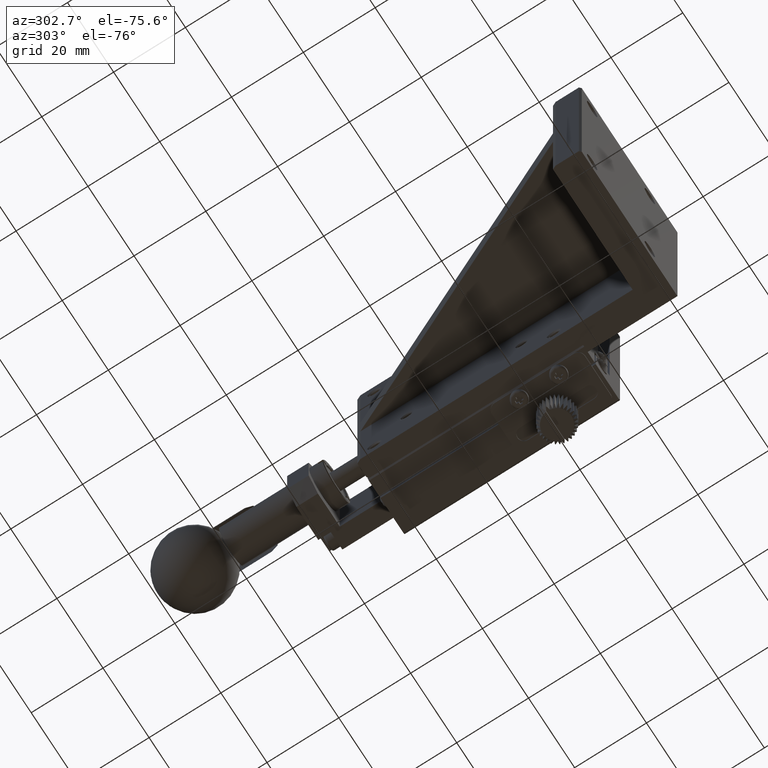
[diagram: clean part render]
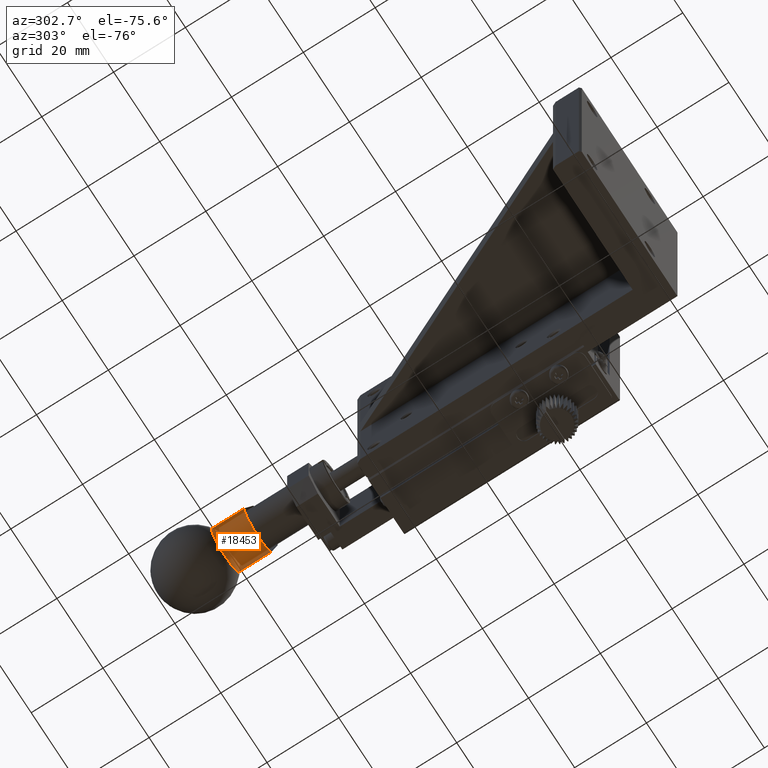
[diagram: same view with one face highlighted and labeled with its STEP entity id]
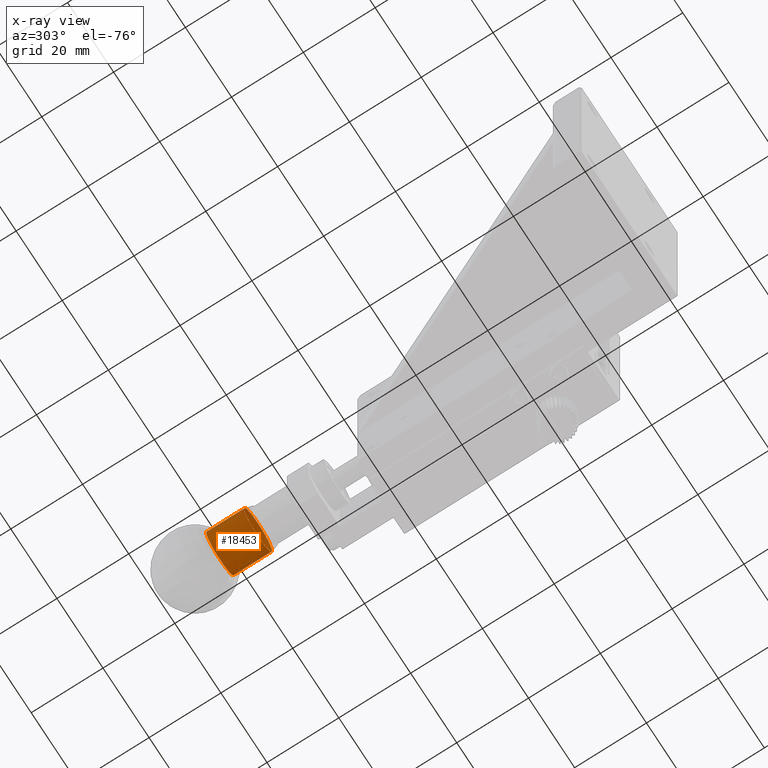
[diagram: x-ray of the same camera — body ghosted, the highlighted face saturated]
A machine part, auxiliary view. The second image highlights one B-rep face of the part: STEP entity #18453.
The next image is the same camera in x-ray: the body ghosted, the highlighted face saturated — about 0% of this face is hidden behind the body in this view.
In plain terms, the highlighted cylindrical surface (bore or boss wall) has radius 6.017 mm, axis along (-0, -1, 0).
Its self-contained STEP definition (entity closure, byte-faithful):
#13 = CARTESIAN_POINT ( 'NONE',  ( 6.055276924156265395, 128.0019999999913409, -33.26319846468483377 ) ) ;
#16 = CARTESIAN_POINT ( 'NONE',  ( -5.007864875759115542, 128.0019999999913409, -30.33143420832531945 ) ) ;
#124 = DIRECTION ( 'NONE',  ( 3.321202459121410343E-17, 1.000000000000000000, -1.733000009605370070E-16 ) ) ;
#262 = EDGE_CURVE ( 'NONE', #64967, #62442, #79744, .T. ) ;
#1105 = CARTESIAN_POINT ( 'NONE',  ( 6.807669567108926678, 128.0019999999913409, -28.42670307980187872 ) ) ;
#1208 = DIRECTION ( 'NONE',  ( -0.5469441386039888275, 0.000000000000000000, 0.8371691043312222691 ) ) ;
#1653 = DIRECTION ( 'NONE',  ( -0.5469441386039888275, 0.000000000000000000, 0.8371691043312222691 ) ) ;
#2397 = ORIENTED_EDGE ( 'NONE', *, *, #9263, .F. ) ;
#2838 = CARTESIAN_POINT ( 'NONE',  ( 2.541319682967011495, 128.0019999999913409, -24.18376215799879603 ) ) ;
#3208 = DIRECTION ( 'NONE',  ( -0.5469441386039888275, 0.000000000000000000, 0.8371691043312222691 ) ) ;
#3864 = CARTESIAN_POINT ( 'NONE',  ( 1.000000000000002665, 128.0019999999836102, -30.00000000000001066 ) ) ;
#3973 = AXIS2_PLACEMENT_3D ( 'NONE', #36223, #87487, #66425 ) ;
#4450 = CARTESIAN_POINT ( 'NONE',  ( -2.290962881972379517, 128.0019999999913409, -24.96275349925101494 ) ) ;
#4844 = DIRECTION ( 'NONE',  ( 3.321202459121410343E-17, 1.000000000000000000, -1.733000009605370070E-16 ) ) ;
#4987 = CARTESIAN_POINT ( 'NONE',  ( 1.000000000000002665, 128.0019999999836102, -30.00000000000001066 ) ) ;
#5153 = VERTEX_POINT ( 'NONE', #79198 ) ;
#5504 = EDGE_CURVE ( 'NONE', #24871, #86286, #42918, .T. ) ;
#5575 = CARTESIAN_POINT ( 'NONE',  ( 3.171745010068736104, 128.0019999999913409, -35.61140023622179740 ) ) ;
#5586 = CARTESIAN_POINT ( 'NONE',  ( 7.007864875759084455, 128.0019999999913409, -29.66856579167474450 ) ) ;
#5743 = DIRECTION ( 'NONE',  ( 3.321202459121410343E-17, 1.000000000000000000, -1.733000009605370070E-16 ) ) ;
#6131 = ORIENTED_EDGE ( 'NONE', *, *, #85118, .F. ) ;
#6329 = AXIS2_PLACEMENT_3D ( 'NONE', #24505, #37921, #17801 ) ;
#6343 = EDGE_CURVE ( 'NONE', #21019, #33969, #33764, .T. ) ;
#6754 = ORIENTED_EDGE ( 'NONE', *, *, #50239, .F. ) ;
#7315 = CIRCLE ( 'NONE', #13387, 6.016999999985729097 ) ;
#7372 = ORIENTED_EDGE ( 'NONE', *, *, #29072, .F. ) ;
#7956 = CARTESIAN_POINT ( 'NONE',  ( -4.945487660404463526, 128.0019999999913409, -29.07508623115082003 ) ) ;
#8030 = DIRECTION ( 'NONE',  ( 3.321202459121410343E-17, 1.000000000000000000, -1.733000009605370070E-16 ) ) ;
#8354 = CARTESIAN_POINT ( 'NONE',  ( 1.000000000000002665, 128.0019999999836102, -30.00000000000001066 ) ) ;
#8620 = DIRECTION ( 'NONE',  ( 0.5469441386039888275, 0.000000000000000000, -0.8371691043312221581 ) ) ;
#8915 = CARTESIAN_POINT ( 'NONE',  ( 1.298374305929240080, 128.0019999999913409, -23.99040252817301777 ) ) ;
#8961 = CIRCLE ( 'NONE', #53294, 6.016999999985729097 ) ;
#9186 = ORIENTED_EDGE ( 'NONE', *, *, #17789, .F. ) ;
#9263 = EDGE_CURVE ( 'NONE', #5153, #30084, #64565, .T. ) ;
#9300 = DIRECTION ( 'NONE',  ( 3.321202459121410343E-17, 1.000000000000000000, -1.733000009605370070E-16 ) ) ;
#9463 = ORIENTED_EDGE ( 'NONE', *, *, #28897, .F. ) ;
#9602 = ORIENTED_EDGE ( 'NONE', *, *, #5504, .F. ) ;
#9634 = EDGE_CURVE ( 'NONE', #31851, #68710, #84420, .T. ) ;
#10141 = ORIENTED_EDGE ( 'NONE', *, *, #54216, .F. ) ;
#10338 = CIRCLE ( 'NONE', #63902, 6.016999999985729097 ) ;
#11207 = DIRECTION ( 'NONE',  ( 3.321202459121410343E-17, 1.000000000000000000, -1.733000009605370070E-16 ) ) ;
#11211 = ORIENTED_EDGE ( 'NONE', *, *, #84259, .F. ) ;
#11230 = VERTEX_POINT ( 'NONE', #7956 ) ;
#11854 = EDGE_CURVE ( 'NONE', #33969, #57438, #46238, .T. ) ;
#11887 = CARTESIAN_POINT ( 'NONE',  ( 1.000000000000002665, 128.0019999999836102, -30.00000000000001066 ) ) ;
#12421 = DIRECTION ( 'NONE',  ( 3.321202459121410343E-17, 1.000000000000000000, -1.733000009605370070E-16 ) ) ;
#12752 = EDGE_CURVE ( 'NONE', #14155, #5153, #76888, .T. ) ;
#13319 = ORIENTED_EDGE ( 'NONE', *, *, #6343, .F. ) ;
#13387 = AXIS2_PLACEMENT_3D ( 'NONE', #11887, #40117, #63610 ) ;
#13409 = CARTESIAN_POINT ( 'NONE',  ( 0.7016256940707062961, 128.0019999999913409, -36.00959747182700710 ) ) ;
#13516 = DIRECTION ( 'NONE',  ( -0.5469441386039888275, 0.000000000000000000, 0.8371691043312222691 ) ) ;
#13848 = CARTESIAN_POINT ( 'NONE',  ( 5.665652644638611513, 128.0019999999913409, -26.20052972121047219 ) ) ;
#13915 = CIRCLE ( 'NONE', #16968, 6.016999999985729097 ) ;
#14155 = VERTEX_POINT ( 'NONE', #45182 ) ;
#14194 = CIRCLE ( 'NONE', #55461, 6.016999999985729097 ) ;
#14388 = DIRECTION ( 'NONE',  ( -0.5469441386039888275, 0.000000000000000000, 0.8371691043312222691 ) ) ;
#14586 = CARTESIAN_POINT ( 'NONE',  ( 1.000000000000002665, 128.0019999999836102, -30.00000000000001066 ) ) ;
#15901 = CIRCLE ( 'NONE', #48034, 6.016999999985729097 ) ;
#15954 = CIRCLE ( 'NONE', #41950, 6.016999999985729097 ) ;
#16109 = EDGE_CURVE ( 'NONE', #40426, #20733, #35730, .T. ) ;
#16494 = VERTEX_POINT ( 'NONE', #71904 ) ;
#16968 = AXIS2_PLACEMENT_3D ( 'NONE', #8354, #74402, #1653 ) ;
#17789 = EDGE_CURVE ( 'NONE', #30084, #83485, #15901, .T. ) ;
#17801 = DIRECTION ( 'NONE',  ( -0.5469441386039888275, 0.000000000000000000, 0.8371691043312222691 ) ) ;
#18310 = DIRECTION ( 'NONE',  ( 3.321202459121410343E-17, 1.000000000000000000, -1.733000009605370070E-16 ) ) ;
#18453 = ADVANCED_FACE ( 'NONE', ( #31577, #23446 ), #52637, .T. ) ;
#18509 = DIRECTION ( 'NONE',  ( 3.321202459121410343E-17, 1.000000000000000000, -1.733000009605370070E-16 ) ) ;
#18528 = ORIENTED_EDGE ( 'NONE', *, *, #11854, .F. ) ;
#18955 = DIRECTION ( 'NONE',  ( -0.5469441386039888275, 0.000000000000000000, 0.8371691043312222691 ) ) ;
#19008 = ORIENTED_EDGE ( 'NONE', *, *, #19306, .F. ) ;
#19306 = EDGE_CURVE ( 'NONE', #19569, #34873, #15954, .T. ) ;
#19569 = VERTEX_POINT ( 'NONE', #69250 ) ;
#19613 = DIRECTION ( 'NONE',  ( 3.321202459121410343E-17, 1.000000000000000000, -1.733000009605370070E-16 ) ) ;
#19748 = CIRCLE ( 'NONE', #88601, 6.016999999985729097 ) ;
#20046 = CARTESIAN_POINT ( 'NONE',  ( 3.716901993786695169, 128.0019999999913409, -24.63131929092573102 ) ) ;
#20322 = EDGE_CURVE ( 'NONE', #88403, #19569, #20638, .T. ) ;
#20638 = CIRCLE ( 'NONE', #43582, 6.016999999985729097 ) ;
#20733 = VERTEX_POINT ( 'NONE', #71380 ) ;
#21019 = VERTEX_POINT ( 'NONE', #2838 ) ;
#21070 = DIRECTION ( 'NONE',  ( 3.321202459121410343E-17, 1.000000000000000000, -1.733000009605370070E-16 ) ) ;
#21162 = CARTESIAN_POINT ( 'NONE',  ( -1.716901993786708935, 128.0019999999913409, -35.36868070907426898 ) ) ;
#22065 = DIRECTION ( 'NONE',  ( -0.5469441386039888275, 0.000000000000000000, 0.8371691043312222691 ) ) ;
#22074 = EDGE_CURVE ( 'NONE', #83388, #67481, #71409, .T. ) ;
#22365 = ORIENTED_EDGE ( 'NONE', *, *, #16109, .F. ) ;
#22515 = ORIENTED_EDGE ( 'NONE', *, *, #12752, .F. ) ;
#22951 = EDGE_CURVE ( 'NONE', #46195, #64967, #48415, .T. ) ;
#23108 = CIRCLE ( 'NONE', #6329, 6.016999999985729097 ) ;
#23135 = CARTESIAN_POINT ( 'NONE',  ( -3.266349884141929838, 128.0019999999913409, -25.75705907819699547 ) ) ;
#23446 = FACE_OUTER_BOUND ( 'NONE', #38864, .T. ) ;
#23652 = DIRECTION ( 'NONE',  ( -0.5469441386039888275, 0.000000000000000000, 0.8371691043312222691 ) ) ;
#24505 = CARTESIAN_POINT ( 'NONE',  ( 1.000000000000002665, 128.0019999999836102, -30.00000000000001066 ) ) ;
#24871 = VERTEX_POINT ( 'NONE', #92921 ) ;
#25040 = CARTESIAN_POINT ( 'NONE',  ( -1.171745010068774073, 128.0019999999913409, -24.38859976377825234 ) ) ;
#26130 = EDGE_CURVE ( 'NONE', #86286, #89652, #86574, .T. ) ;
#26783 = CARTESIAN_POINT ( 'NONE',  ( 1.000000000000002665, 128.0019999999836102, -30.00000000000001066 ) ) ;
#27232 = ORIENTED_EDGE ( 'NONE', *, *, #70936, .F. ) ;
#27249 = AXIS2_PLACEMENT_3D ( 'NONE', #85518, #49118, #64000 ) ;
#27498 = DIRECTION ( 'NONE',  ( 3.321202459121410343E-17, 1.000000000000000000, -1.733000009605370070E-16 ) ) ;
#28501 = AXIS2_PLACEMENT_3D ( 'NONE', #63977, #80230, #43314 ) ;
#28878 = ORIENTED_EDGE ( 'NONE', *, *, #26130, .F. ) ;
#28897 = EDGE_CURVE ( 'NONE', #66610, #24871, #85250, .T. ) ;
#28969 = EDGE_CURVE ( 'NONE', #68710, #69560, #10338, .T. ) ;
#29072 = EDGE_CURVE ( 'NONE', #69560, #88403, #47094, .T. ) ;
#29337 = AXIS2_PLACEMENT_3D ( 'NONE', #84583, #85508, #18955 ) ;
#29474 = AXIS2_PLACEMENT_3D ( 'NONE', #66931, #51571, #73638 ) ;
#29950 = CARTESIAN_POINT ( 'NONE',  ( 1.000000000000002665, 128.0019999999836102, -30.00000000000001066 ) ) ;
#30020 = CARTESIAN_POINT ( 'NONE',  ( 1.000000000000002665, 128.0019999999836102, -30.00000000000001066 ) ) ;
#30084 = VERTEX_POINT ( 'NONE', #51068 ) ;
#30187 = CARTESIAN_POINT ( 'NONE',  ( 1.000000000000002665, 128.0019999999836102, -30.00000000000001066 ) ) ;
#30210 = CIRCLE ( 'NONE', #52926, 6.016999999985729097 ) ;
#30524 = DIRECTION ( 'NONE',  ( -0.5469441386039888275, 0.000000000000000000, 0.8371691043312222691 ) ) ;
#30576 = CARTESIAN_POINT ( 'NONE',  ( 6.623264104674978725, 128.0019999999913409, -32.14083857609637107 ) ) ;
#31577 = FACE_OUTER_BOUND ( 'NONE', #85665, .T. ) ;
#31814 = ORIENTED_EDGE ( 'NONE', *, *, #89607, .F. ) ;
#31851 = VERTEX_POINT ( 'NONE', #5586 ) ;
#32388 = DIRECTION ( 'NONE',  ( 3.321202459121410343E-17, 1.000000000000000000, -1.733000009605370070E-16 ) ) ;
#32635 = ORIENTED_EDGE ( 'NONE', *, *, #22951, .F. ) ;
#32783 = ORIENTED_EDGE ( 'NONE', *, *, #64152, .F. ) ;
#33334 = CARTESIAN_POINT ( 'NONE',  ( 1.000000000000002665, 128.0019999999836102, -30.00000000000001066 ) ) ;
#33764 = CIRCLE ( 'NONE', #91940, 6.016999999985729097 ) ;
#33969 = VERTEX_POINT ( 'NONE', #20046 ) ;
#34873 = VERTEX_POINT ( 'NONE', #56371 ) ;
#35730 = CIRCLE ( 'NONE', #78552, 6.016999999985729097 ) ;
#36129 = CIRCLE ( 'NONE', #28501, 6.017000000000001236 ) ;
#36223 = CARTESIAN_POINT ( 'NONE',  ( 1.000000000000002665, 128.0019999999836102, -30.00000000000001066 ) ) ;
#36863 = AXIS2_PLACEMENT_3D ( 'NONE', #37999, #9300, #23652 ) ;
#37013 = ORIENTED_EDGE ( 'NONE', *, *, #43798, .F. ) ;
#37342 = DIRECTION ( 'NONE',  ( 3.321202459121410343E-17, 1.000000000000000000, -1.733000009605370070E-16 ) ) ;
#37661 = CARTESIAN_POINT ( 'NONE',  ( 1.000000000000002665, 128.0019999999836102, -30.00000000000001066 ) ) ;
#37921 = DIRECTION ( 'NONE',  ( 3.321202459121410343E-17, 1.000000000000000000, -1.733000009605370070E-16 ) ) ;
#37999 = CARTESIAN_POINT ( 'NONE',  ( 1.000000000000002665, 128.0019999999836102, -30.00000000000001066 ) ) ;
#38530 = VERTEX_POINT ( 'NONE', #21162 ) ;
#38864 = EDGE_LOOP ( 'NONE', ( #57651 ) ) ;
#40034 = DIRECTION ( 'NONE',  ( 3.321202459121410343E-17, 1.000000000000000000, -1.733000009605370070E-16 ) ) ;
#40117 = DIRECTION ( 'NONE',  ( 3.321202459121410343E-17, 1.000000000000000000, -1.733000009605370070E-16 ) ) ;
#40426 = VERTEX_POINT ( 'NONE', #13409 ) ;
#41527 = EDGE_CURVE ( 'NONE', #20733, #38530, #44372, .T. ) ;
#41736 = CARTESIAN_POINT ( 'NONE',  ( 1.000000000000002665, 128.0019999999836102, -30.00000000000001066 ) ) ;
#41798 = VERTEX_POINT ( 'NONE', #5575 ) ;
#41950 = AXIS2_PLACEMENT_3D ( 'NONE', #51689, #59403, #14388 ) ;
#42155 = ORIENTED_EDGE ( 'NONE', *, *, #71436, .F. ) ;
#42422 = CIRCLE ( 'NONE', #91385, 6.016999999985729097 ) ;
#42661 = CARTESIAN_POINT ( 'NONE',  ( 1.000000000000002665, 128.0019999999836102, -30.00000000000001066 ) ) ;
#42688 = ORIENTED_EDGE ( 'NONE', *, *, #28969, .F. ) ;
#42918 = CIRCLE ( 'NONE', #72074, 6.016999999985729097 ) ;
#43314 = DIRECTION ( 'NONE',  ( 0.5469441386039877173, 0.000000000000000000, -0.8371691043312229352 ) ) ;
#43582 = AXIS2_PLACEMENT_3D ( 'NONE', #14586, #58197, #1208 ) ;
#43798 = EDGE_CURVE ( 'NONE', #34873, #41798, #46005, .T. ) ;
#43957 = AXIS2_PLACEMENT_3D ( 'NONE', #60213, #58816, #30524 ) ;
#44372 = CIRCLE ( 'NONE', #91787, 6.016999999985729097 ) ;
#45182 = CARTESIAN_POINT ( 'NONE',  ( -3.665652644638634161, 128.0019999999913409, -33.79947027878950649 ) ) ;
#46005 = CIRCLE ( 'NONE', #36863, 6.016999999985729097 ) ;
#46195 = VERTEX_POINT ( 'NONE', #25040 ) ;
#46238 = CIRCLE ( 'NONE', #63113, 6.016999999985729097 ) ;
#47094 = CIRCLE ( 'NONE', #27249, 6.016999999985729097 ) ;
#48034 = AXIS2_PLACEMENT_3D ( 'NONE', #62101, #32388, #54880 ) ;
#48415 = CIRCLE ( 'NONE', #59196, 6.016999999985729097 ) ;
#49118 = DIRECTION ( 'NONE',  ( 3.321202459121410343E-17, 1.000000000000000000, -1.733000009605370070E-16 ) ) ;
#49301 = AXIS2_PLACEMENT_3D ( 'NONE', #30020, #8030, #58793 ) ;
#49482 = DIRECTION ( 'NONE',  ( -0.5469441386039888275, 0.000000000000000000, 0.8371691043312222691 ) ) ;
#50239 = EDGE_CURVE ( 'NONE', #16494, #14155, #13915, .T. ) ;
#50802 = CIRCLE ( 'NONE', #49301, 6.016999999985729097 ) ;
#51068 = CARTESIAN_POINT ( 'NONE',  ( -4.807669567108928455, 128.0019999999913409, -31.57329692019813905 ) ) ;
#51571 = DIRECTION ( 'NONE',  ( 3.321202459121410343E-17, 1.000000000000000000, -1.733000009605370070E-16 ) ) ;
#51572 = DIRECTION ( 'NONE',  ( -0.5469441386039888275, 0.000000000000000000, 0.8371691043312222691 ) ) ;
#51689 = CARTESIAN_POINT ( 'NONE',  ( 1.000000000000002665, 128.0019999999836102, -30.00000000000001066 ) ) ;
#52168 = CARTESIAN_POINT ( 'NONE',  ( 0.9999999999999991118, 94.50199999999134093, -30.00000000000000000 ) ) ;
#52637 = CYLINDRICAL_SURFACE ( 'NONE', #57292, 6.016999999999999460 ) ;
#52926 = AXIS2_PLACEMENT_3D ( 'NONE', #54705, #18310, #13516 ) ;
#53294 = AXIS2_PLACEMENT_3D ( 'NONE', #3864, #19613, #71342 ) ;
#53581 = DIRECTION ( 'NONE',  ( -3.321202459121410343E-17, -1.000000000000000000, 1.733000009605370070E-16 ) ) ;
#54216 = EDGE_CURVE ( 'NONE', #62442, #21019, #50802, .T. ) ;
#54285 = DIRECTION ( 'NONE',  ( -0.5469441386039888275, 0.000000000000000000, 0.8371691043312222691 ) ) ;
#54705 = CARTESIAN_POINT ( 'NONE',  ( 1.000000000000002665, 128.0019999999836102, -30.00000000000001066 ) ) ;
#54880 = DIRECTION ( 'NONE',  ( -0.5469441386039888275, 0.000000000000000000, 0.8371691043312222691 ) ) ;
#55141 = DIRECTION ( 'NONE',  ( -0.5469441386039888275, 0.000000000000000000, 0.8371691043312222691 ) ) ;
#55461 = AXIS2_PLACEMENT_3D ( 'NONE', #64191, #21070, #79025 ) ;
#56038 = CARTESIAN_POINT ( 'NONE',  ( 1.957611460036342121, 128.0019999999913409, -35.94030885488586335 ) ) ;
#56232 = EDGE_CURVE ( 'NONE', #67481, #60207, #14194, .T. ) ;
#56331 = DIRECTION ( 'NONE',  ( -0.5469441386039888275, 0.000000000000000000, 0.8371691043312222691 ) ) ;
#56371 = CARTESIAN_POINT ( 'NONE',  ( 4.290962881972391507, 128.0019999999913409, -35.03724650074902058 ) ) ;
#57292 = AXIS2_PLACEMENT_3D ( 'NONE', #52168, #53581, #8620 ) ;
#57438 = VERTEX_POINT ( 'NONE', #73237 ) ;
#57651 = ORIENTED_EDGE ( 'NONE', *, *, #70499, .T. ) ;
#57919 = CARTESIAN_POINT ( 'NONE',  ( 1.000000000000002665, 128.0019999999836102, -30.00000000000001066 ) ) ;
#58197 = DIRECTION ( 'NONE',  ( 3.321202459121410343E-17, 1.000000000000000000, -1.733000009605370070E-16 ) ) ;
#58793 = DIRECTION ( 'NONE',  ( -0.5469441386039888275, 0.000000000000000000, 0.8371691043312222691 ) ) ;
#58816 = DIRECTION ( 'NONE',  ( 3.321202459121410343E-17, 1.000000000000000000, -1.733000009605370070E-16 ) ) ;
#58955 = CARTESIAN_POINT ( 'NONE',  ( 4.290962881980195931, 117.4319999999913477, -35.03724650076097191 ) ) ;
#58971 = CARTESIAN_POINT ( 'NONE',  ( 1.000000000000002665, 128.0019999999836102, -30.00000000000001066 ) ) ;
#59196 = AXIS2_PLACEMENT_3D ( 'NONE', #29950, #70013, #55141 ) ;
#59403 = DIRECTION ( 'NONE',  ( 3.321202459121410343E-17, 1.000000000000000000, -1.733000009605370070E-16 ) ) ;
#59413 = VERTEX_POINT ( 'NONE', #58955 ) ;
#59757 = CARTESIAN_POINT ( 'NONE',  ( 1.000000000000002665, 128.0019999999836102, -30.00000000000001066 ) ) ;
#60207 = VERTEX_POINT ( 'NONE', #1105 ) ;
#60213 = CARTESIAN_POINT ( 'NONE',  ( 1.000000000000002665, 128.0019999999836102, -30.00000000000001066 ) ) ;
#61517 = ORIENTED_EDGE ( 'NONE', *, *, #56232, .F. ) ;
#62101 = CARTESIAN_POINT ( 'NONE',  ( 1.000000000000002665, 128.0019999999836102, -30.00000000000001066 ) ) ;
#62442 = VERTEX_POINT ( 'NONE', #8915 ) ;
#62865 = DIRECTION ( 'NONE',  ( 3.321202459121410343E-17, 1.000000000000000000, -1.733000009605370070E-16 ) ) ;
#63113 = AXIS2_PLACEMENT_3D ( 'NONE', #26783, #12421, #64988 ) ;
#63354 = ORIENTED_EDGE ( 'NONE', *, *, #262, .F. ) ;
#63429 = CARTESIAN_POINT ( 'NONE',  ( 1.000000000000002665, 128.0019999999836102, -30.00000000000001066 ) ) ;
#63610 = DIRECTION ( 'NONE',  ( -0.5469441386039888275, 0.000000000000000000, 0.8371691043312222691 ) ) ;
#63812 = DIRECTION ( 'NONE',  ( -0.5469441386039888275, 0.000000000000000000, 0.8371691043312222691 ) ) ;
#63902 = AXIS2_PLACEMENT_3D ( 'NONE', #33334, #40034, #3208 ) ;
#63977 = CARTESIAN_POINT ( 'NONE',  ( 1.000000000000000888, 117.4319999999913477, -30.00000000000000711 ) ) ;
#64000 = DIRECTION ( 'NONE',  ( -0.5469441386039888275, 0.000000000000000000, 0.8371691043312222691 ) ) ;
#64152 = EDGE_CURVE ( 'NONE', #38530, #16494, #92681, .T. ) ;
#64191 = CARTESIAN_POINT ( 'NONE',  ( 1.000000000000002665, 128.0019999999836102, -30.00000000000001066 ) ) ;
#64565 = CIRCLE ( 'NONE', #76757, 6.016999999985729097 ) ;
#64967 = VERTEX_POINT ( 'NONE', #85026 ) ;
#64988 = DIRECTION ( 'NONE',  ( -0.5469441386039888275, 0.000000000000000000, 0.8371691043312222691 ) ) ;
#66425 = DIRECTION ( 'NONE',  ( -0.5469441386039888275, 0.000000000000000000, 0.8371691043312222691 ) ) ;
#66597 = DIRECTION ( 'NONE',  ( 3.321202459121410343E-17, 1.000000000000000000, -1.733000009605370070E-16 ) ) ;
#66610 = VERTEX_POINT ( 'NONE', #82178 ) ;
#66931 = CARTESIAN_POINT ( 'NONE',  ( 1.000000000000002665, 128.0019999999836102, -30.00000000000001066 ) ) ;
#67427 = CARTESIAN_POINT ( 'NONE',  ( 6.353651230085558765, 128.0019999999913409, -27.25360099285782667 ) ) ;
#67481 = VERTEX_POINT ( 'NONE', #67427 ) ;
#68248 = AXIS2_PLACEMENT_3D ( 'NONE', #69775, #18509, #56331 ) ;
#68710 = VERTEX_POINT ( 'NONE', #70164 ) ;
#69250 = CARTESIAN_POINT ( 'NONE',  ( 5.266349884141879656, 128.0019999999913409, -34.24294092180303295 ) ) ;
#69432 = ORIENTED_EDGE ( 'NONE', *, *, #20322, .F. ) ;
#69560 = VERTEX_POINT ( 'NONE', #30576 ) ;
#69775 = CARTESIAN_POINT ( 'NONE',  ( 1.000000000000002665, 128.0019999999836102, -30.00000000000001066 ) ) ;
#70013 = DIRECTION ( 'NONE',  ( 3.321202459121410343E-17, 1.000000000000000000, -1.733000009605370070E-16 ) ) ;
#70164 = CARTESIAN_POINT ( 'NONE',  ( 6.945487660404437769, 128.0019999999913409, -30.92491376884924748 ) ) ;
#70499 = EDGE_CURVE ( 'NONE', #59413, #59413, #36129, .T. ) ;
#70911 = CARTESIAN_POINT ( 'NONE',  ( 1.000000000000002665, 128.0019999999836102, -30.00000000000001066 ) ) ;
#70936 = EDGE_CURVE ( 'NONE', #60207, #31851, #42422, .T. ) ;
#71342 = DIRECTION ( 'NONE',  ( -0.5469441386039888275, 0.000000000000000000, 0.8371691043312222691 ) ) ;
#71380 = CARTESIAN_POINT ( 'NONE',  ( -0.5413196829670372523, 128.0019999999913409, -35.81623784200118621 ) ) ;
#71409 = CIRCLE ( 'NONE', #75961, 6.016999999985729097 ) ;
#71436 = EDGE_CURVE ( 'NONE', #41798, #72361, #30210, .T. ) ;
#71904 = CARTESIAN_POINT ( 'NONE',  ( -2.773742650335675020, 128.0019999999913409, -34.68648646737251084 ) ) ;
#72074 = AXIS2_PLACEMENT_3D ( 'NONE', #30187, #66597, #89994 ) ;
#72160 = ORIENTED_EDGE ( 'NONE', *, *, #41527, .F. ) ;
#72361 = VERTEX_POINT ( 'NONE', #56038 ) ;
#73237 = CARTESIAN_POINT ( 'NONE',  ( 4.773742650335648818, 128.0019999999913409, -25.31351353262746429 ) ) ;
#73638 = DIRECTION ( 'NONE',  ( -0.5469441386039888275, 0.000000000000000000, 0.8371691043312222691 ) ) ;
#74402 = DIRECTION ( 'NONE',  ( 3.321202459121410343E-17, 1.000000000000000000, -1.733000009605370070E-16 ) ) ;
#75961 = AXIS2_PLACEMENT_3D ( 'NONE', #4987, #11207, #54285 ) ;
#76313 = EDGE_CURVE ( 'NONE', #11230, #66610, #7315, .T. ) ;
#76483 = AXIS2_PLACEMENT_3D ( 'NONE', #41736, #62865, #63812 ) ;
#76713 = ORIENTED_EDGE ( 'NONE', *, *, #76313, .F. ) ;
#76757 = AXIS2_PLACEMENT_3D ( 'NONE', #42661, #37342, #80510 ) ;
#76888 = CIRCLE ( 'NONE', #29474, 6.016999999985729097 ) ;
#78552 = AXIS2_PLACEMENT_3D ( 'NONE', #63429, #27498, #49482 ) ;
#79025 = DIRECTION ( 'NONE',  ( -0.5469441386039888275, 0.000000000000000000, 0.8371691043312222691 ) ) ;
#79198 = CARTESIAN_POINT ( 'NONE',  ( -4.353651230085553436, 128.0019999999913409, -32.74639900714219465 ) ) ;
#79421 = DIRECTION ( 'NONE',  ( 3.321202459121410343E-17, 1.000000000000000000, -1.733000009605370070E-16 ) ) ;
#79744 = CIRCLE ( 'NONE', #93461, 6.016999999985729097 ) ;
#80230 = DIRECTION ( 'NONE',  ( 3.321202459121410343E-17, 1.000000000000000000, -1.733000009605370070E-16 ) ) ;
#80374 = DIRECTION ( 'NONE',  ( -0.5469441386039888275, 0.000000000000000000, 0.8371691043312222691 ) ) ;
#80510 = DIRECTION ( 'NONE',  ( -0.5469441386039888275, 0.000000000000000000, 0.8371691043312222691 ) ) ;
#82178 = CARTESIAN_POINT ( 'NONE',  ( -4.623264104674991160, 128.0019999999913409, -27.85916142390371775 ) ) ;
#83388 = VERTEX_POINT ( 'NONE', #13848 ) ;
#83485 = VERTEX_POINT ( 'NONE', #16 ) ;
#83513 = ORIENTED_EDGE ( 'NONE', *, *, #92400, .F. ) ;
#84092 = CIRCLE ( 'NONE', #76483, 6.016999999985729097 ) ;
#84259 = EDGE_CURVE ( 'NONE', #89652, #46195, #8961, .T. ) ;
#84420 = CIRCLE ( 'NONE', #29337, 6.016999999985729097 ) ;
#84583 = CARTESIAN_POINT ( 'NONE',  ( 1.000000000000002665, 128.0019999999836102, -30.00000000000001066 ) ) ;
#85026 = CARTESIAN_POINT ( 'NONE',  ( 0.04238853996365969656, 128.0019999999913409, -24.05969114511415796 ) ) ;
#85118 = EDGE_CURVE ( 'NONE', #72361, #40426, #19748, .T. ) ;
#85250 = CIRCLE ( 'NONE', #43957, 6.016999999985729097 ) ;
#85508 = DIRECTION ( 'NONE',  ( 3.321202459121410343E-17, 1.000000000000000000, -1.733000009605370070E-16 ) ) ;
#85518 = CARTESIAN_POINT ( 'NONE',  ( 1.000000000000002665, 128.0019999999836102, -30.00000000000001066 ) ) ;
#85665 = EDGE_LOOP ( 'NONE', ( #9186, #2397, #22515, #6754, #32783, #72160, #22365, #6131, #42155, #37013, #19008, #69432, #7372, #42688, #87932, #27232, #61517, #90102, #31814, #18528, #13319, #10141, #63354, #32635, #11211, #28878, #9602, #9463, #76713, #83513 ) ) ;
#85724 = DIRECTION ( 'NONE',  ( -0.5469441386039888275, 0.000000000000000000, 0.8371691043312222691 ) ) ;
#86286 = VERTEX_POINT ( 'NONE', #23135 ) ;
#86574 = CIRCLE ( 'NONE', #68248, 6.016999999985729097 ) ;
#87487 = DIRECTION ( 'NONE',  ( 3.321202459121410343E-17, 1.000000000000000000, -1.733000009605370070E-16 ) ) ;
#87932 = ORIENTED_EDGE ( 'NONE', *, *, #9634, .F. ) ;
#88403 = VERTEX_POINT ( 'NONE', #13 ) ;
#88601 = AXIS2_PLACEMENT_3D ( 'NONE', #58971, #124, #22065 ) ;
#88949 = DIRECTION ( 'NONE',  ( 3.321202459121410343E-17, 1.000000000000000000, -1.733000009605370070E-16 ) ) ;
#89607 = EDGE_CURVE ( 'NONE', #57438, #83388, #84092, .T. ) ;
#89652 = VERTEX_POINT ( 'NONE', #4450 ) ;
#89994 = DIRECTION ( 'NONE',  ( -0.5469441386039888275, 0.000000000000000000, 0.8371691043312222691 ) ) ;
#90102 = ORIENTED_EDGE ( 'NONE', *, *, #22074, .F. ) ;
#91385 = AXIS2_PLACEMENT_3D ( 'NONE', #57919, #5743, #92873 ) ;
#91787 = AXIS2_PLACEMENT_3D ( 'NONE', #37661, #79421, #51572 ) ;
#91940 = AXIS2_PLACEMENT_3D ( 'NONE', #70911, #4844, #85724 ) ;
#92400 = EDGE_CURVE ( 'NONE', #83485, #11230, #23108, .T. ) ;
#92681 = CIRCLE ( 'NONE', #3973, 6.016999999985729097 ) ;
#92873 = DIRECTION ( 'NONE',  ( -0.5469441386039888275, 0.000000000000000000, 0.8371691043312222691 ) ) ;
#92921 = CARTESIAN_POINT ( 'NONE',  ( -4.055276924156294704, 128.0019999999913409, -26.73680153531524084 ) ) ;
#93461 = AXIS2_PLACEMENT_3D ( 'NONE', #59757, #88949, #80374 ) ;